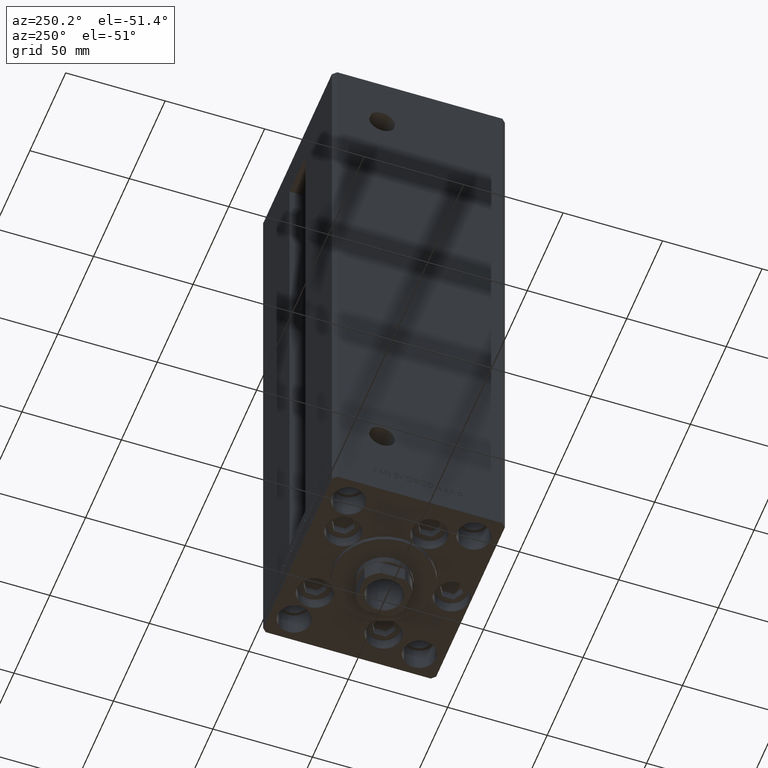
[diagram: clean part render]
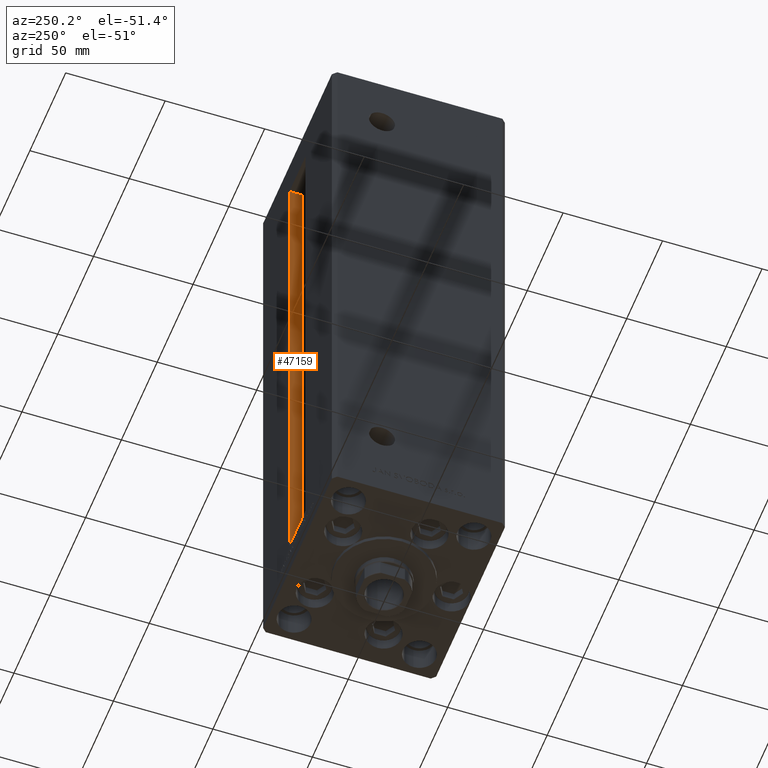
[diagram: same view with one face highlighted and labeled with its STEP entity id]
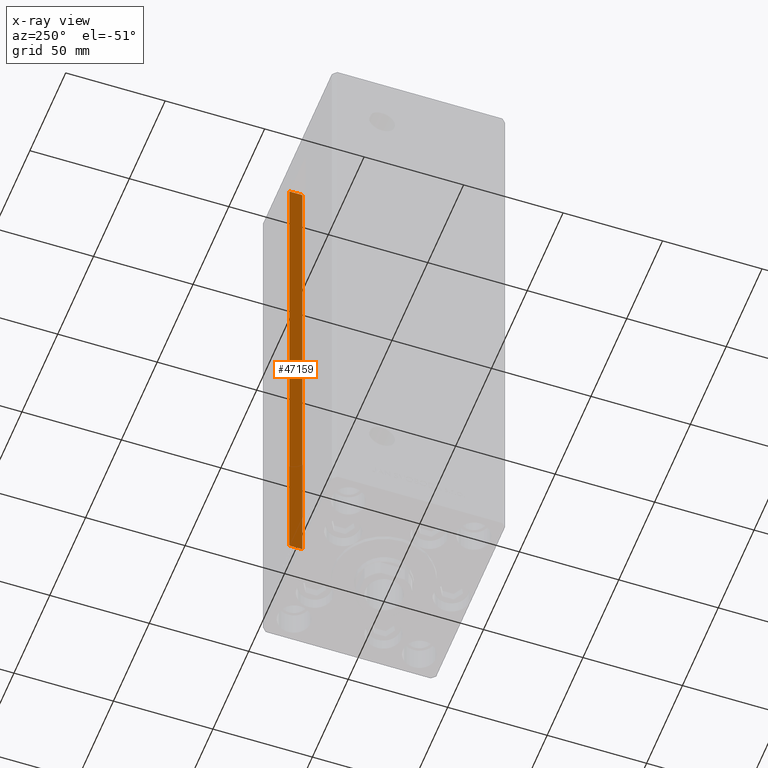
[diagram: x-ray of the same camera — body ghosted, the highlighted face saturated]
A machine part, auxiliary view. The second image highlights one B-rep face of the part: STEP entity #47159.
The next image is the same camera in x-ray: the body ghosted, the highlighted face saturated — about 0% of this face is hidden behind the body in this view.
In plain terms, the highlighted planar face has unit normal (1, 0, 0).
Its self-contained STEP definition (entity closure, byte-faithful):
#1283 = VECTOR ( 'NONE', #21951, 1000.000000000000000 ) ;
#1827 = VECTOR ( 'NONE', #46368, 1000.000000000000000 ) ;
#2386 = CARTESIAN_POINT ( 'NONE',  ( 11.24999999999999822, 43.50000000000000000, 0.000000000000000000 ) ) ;
#3400 = EDGE_LOOP ( 'NONE', ( #32293, #22758, #7969, #49337 ) ) ;
#4478 = CARTESIAN_POINT ( 'NONE',  ( 11.24999999999999822, 36.99999999999999289, 268.5000000000000000 ) ) ;
#4920 = AXIS2_PLACEMENT_3D ( 'NONE', #21380, #36581, #39875 ) ;
#5782 = CARTESIAN_POINT ( 'NONE',  ( 11.24999999999999822, 36.99999999999999289, 0.000000000000000000 ) ) ;
#5939 = FACE_OUTER_BOUND ( 'NONE', #3400, .T. ) ;
#7969 = ORIENTED_EDGE ( 'NONE', *, *, #9005, .T. ) ;
#9005 = EDGE_CURVE ( 'NONE', #33882, #24623, #10072, .T. ) ;
#9464 = CARTESIAN_POINT ( 'NONE',  ( 11.24999999999999822, 36.99999999999999289, 0.000000000000000000 ) ) ;
#10031 = DIRECTION ( 'NONE',  ( -0.000000000000000000, -1.000000000000000000, 0.000000000000000000 ) ) ;
#10072 = LINE ( 'NONE', #5782, #1283 ) ;
#13948 = EDGE_CURVE ( 'NONE', #21593, #24623, #24970, .T. ) ;
#14694 = LINE ( 'NONE', #45865, #1827 ) ;
#16877 = EDGE_CURVE ( 'NONE', #33882, #22725, #14694, .T. ) ;
#16991 = CARTESIAN_POINT ( 'NONE',  ( 11.24999999999999112, 43.50000000000000000, 268.5000000000000000 ) ) ;
#21380 = CARTESIAN_POINT ( 'NONE',  ( 11.24999999999999822, 36.99999999999999289, 0.000000000000000000 ) ) ;
#21431 = CARTESIAN_POINT ( 'NONE',  ( 11.24999999999999822, 0.000000000000000000, 268.5000000000000000 ) ) ;
#21593 = VERTEX_POINT ( 'NONE', #16991 ) ;
#21951 = DIRECTION ( 'NONE',  ( -0.000000000000000000, -0.000000000000000000, 1.000000000000000000 ) ) ;
#22725 = VERTEX_POINT ( 'NONE', #2386 ) ;
#22758 = ORIENTED_EDGE ( 'NONE', *, *, #16877, .F. ) ;
#24458 = DIRECTION ( 'NONE',  ( -0.000000000000000000, -0.000000000000000000, 1.000000000000000000 ) ) ;
#24623 = VERTEX_POINT ( 'NONE', #4478 ) ;
#24970 = LINE ( 'NONE', #21431, #32461 ) ;
#27573 = VECTOR ( 'NONE', #24458, 1000.000000000000000 ) ;
#32293 = ORIENTED_EDGE ( 'NONE', *, *, #43440, .F. ) ;
#32461 = VECTOR ( 'NONE', #10031, 1000.000000000000000 ) ;
#33268 = PLANE ( 'NONE',  #4920 ) ;
#33882 = VERTEX_POINT ( 'NONE', #9464 ) ;
#36581 = DIRECTION ( 'NONE',  ( 1.000000000000000000, -0.000000000000000000, 0.000000000000000000 ) ) ;
#39875 = DIRECTION ( 'NONE',  ( 0.000000000000000000, 0.000000000000000000, -1.000000000000000000 ) ) ;
#40175 = CARTESIAN_POINT ( 'NONE',  ( 11.24999999999999822, 43.50000000000000000, 0.000000000000000000 ) ) ;
#43440 = EDGE_CURVE ( 'NONE', #22725, #21593, #47527, .T. ) ;
#45865 = CARTESIAN_POINT ( 'NONE',  ( 11.24999999999999822, 36.99999999999999289, 0.000000000000000000 ) ) ;
#46368 = DIRECTION ( 'NONE',  ( 0.000000000000000000, 1.000000000000000000, 0.000000000000000000 ) ) ;
#47159 = ADVANCED_FACE ( 'NONE', ( #5939 ), #33268, .F. ) ;
#47527 = LINE ( 'NONE', #40175, #27573 ) ;
#49337 = ORIENTED_EDGE ( 'NONE', *, *, #13948, .F. ) ;